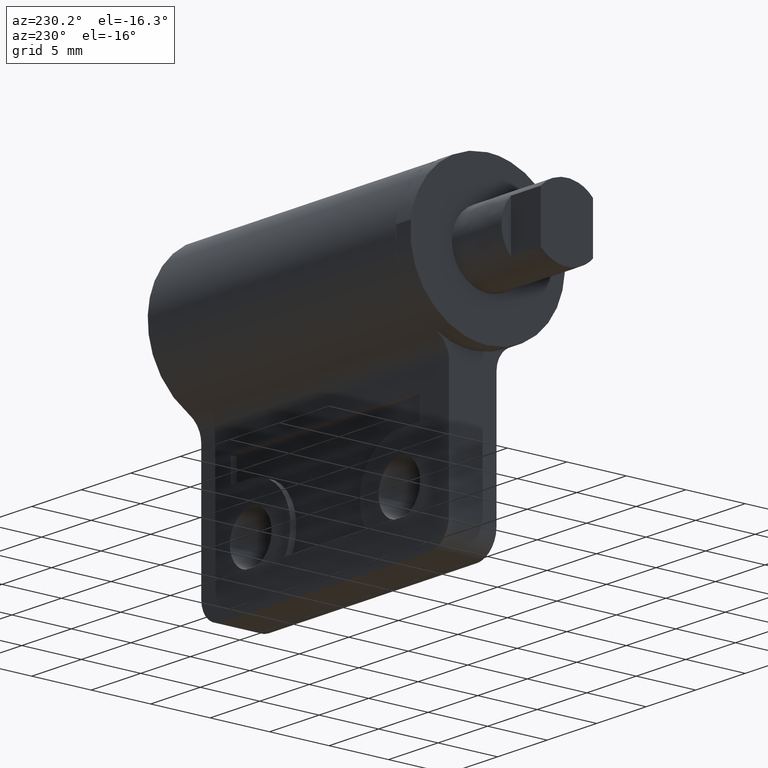
[diagram: clean part render]
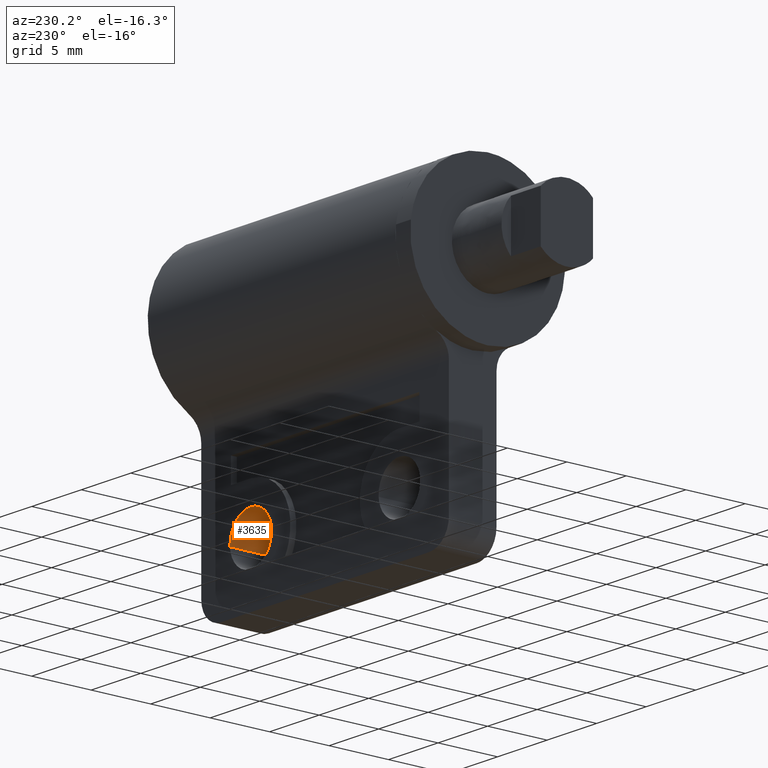
[diagram: same view with one face highlighted and labeled with its STEP entity id]
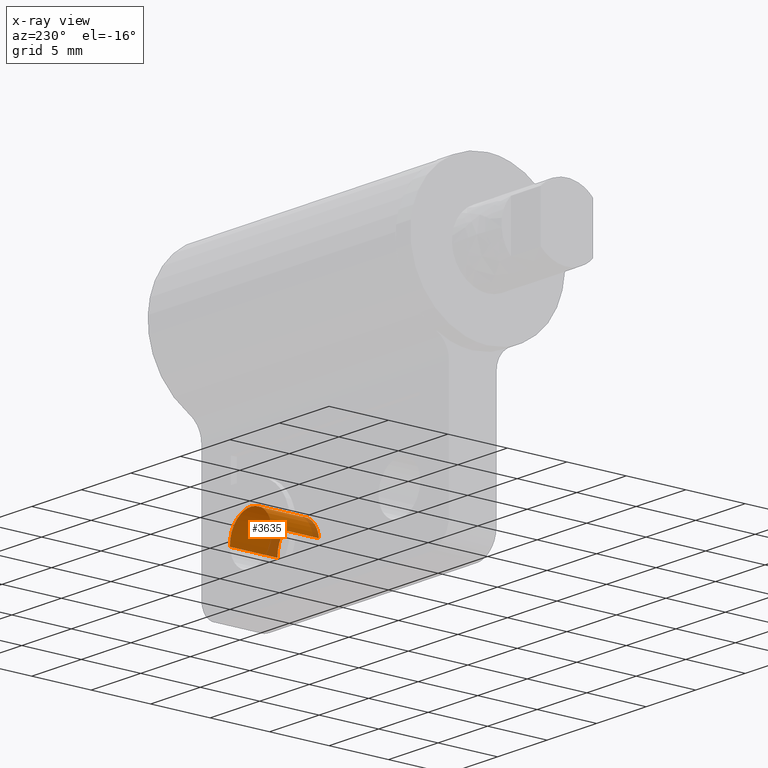
[diagram: x-ray of the same camera — body ghosted, the highlighted face saturated]
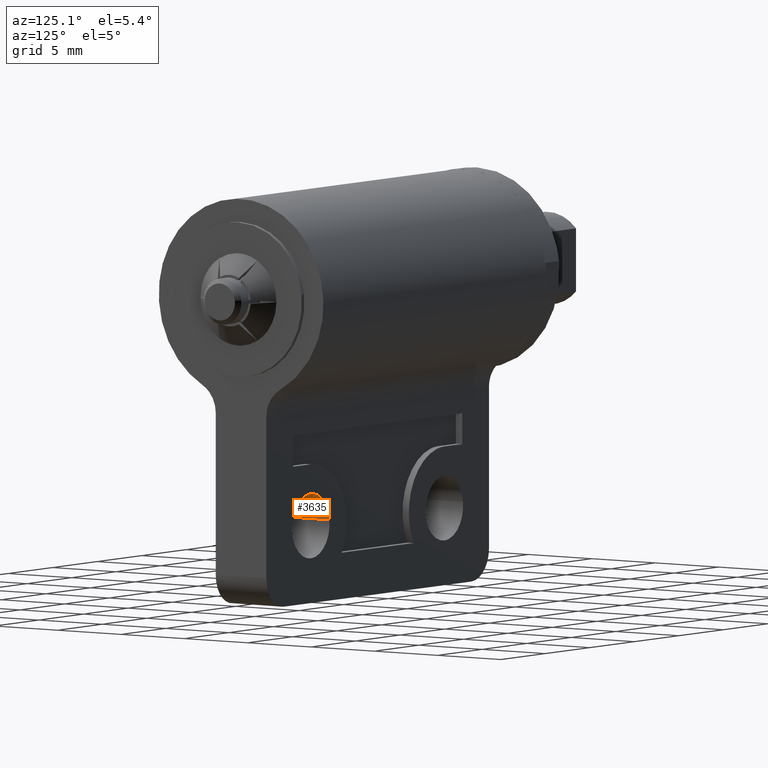
[diagram: same view with one face highlighted and labeled with its STEP entity id]
A machine part, auxiliary view. The second image highlights one B-rep face of the part: STEP entity #3635.
The next image is the same camera in x-ray: the body ghosted, the highlighted face saturated — about 15% of this face is hidden behind the body in this view.
A second angle (auxiliary view) of the same face is appended — the face is thin or edge-on in the first view.
In plain terms, the highlighted face is a freeform B-spline surface patch.
Its self-contained STEP definition (entity closure, byte-faithful):
#3472=CARTESIAN_POINT('',(24.414679769260239,-2.000000000000016,-14.752130003300460));
#3473=VERTEX_POINT('',#3472);
#3491=CARTESIAN_POINT('',(28.596083076684870,-2.0,-15.128201933040470));
#3492=VERTEX_POINT('',#3491);
#3506=CARTESIAN_POINT('',(28.596083076684859,1.999999999999780,-15.128201933040470));
#3507=VERTEX_POINT('',#3506);
#3508=CARTESIAN_POINT('',(28.596083076684859,1.999999999999780,-15.128201933040470));
#3509=CARTESIAN_POINT('',(28.596083076684870,-2.0,-15.128201933040470));
#3510=QUASI_UNIFORM_CURVE('',1,(#3508,#3509),.UNSPECIFIED.,.F.,.U.);
#3511=EDGE_CURVE('',#3507,#3492,#3510,.T.);
#3528=CARTESIAN_POINT('',(24.414679772047521,1.999999999999780,-14.752129979850981));
#3529=VERTEX_POINT('',#3528);
#3545=CARTESIAN_POINT('',(24.414679772047521,1.999999999999780,-14.752129979850981));
#3546=CARTESIAN_POINT('',(24.414679769260239,-2.000000000000016,-14.752130003300460));
#3547=QUASI_UNIFORM_CURVE('',1,(#3545,#3546),.UNSPECIFIED.,.F.,.U.);
#3548=EDGE_CURVE('',#3529,#3473,#3547,.T.);
#3553=CARTESIAN_POINT('',(28.596083076685922,2.099999999999775,-15.128201933023201));
#3554=CARTESIAN_POINT('',(28.724285009709128,2.099999999999775,-13.032118856337279));
#3555=CARTESIAN_POINT('',(26.628201933023199,2.099999999999775,-12.903916923314080));
#3556=CARTESIAN_POINT('',(24.648758669237047,2.099999999999775,-12.782848986861692));
#3557=CARTESIAN_POINT('',(24.414679994636302,2.099999999999776,-14.752128107220814));
#3558=CARTESIAN_POINT('',(28.596083076685922,-2.102499999999995,-15.128201933023201));
#3559=CARTESIAN_POINT('',(28.724285009709128,-2.102499999999995,-13.032118856337279));
#3560=CARTESIAN_POINT('',(26.628201933023199,-2.102499999999995,-12.903916923314080));
#3561=CARTESIAN_POINT('',(24.648758669237047,-2.102499999999995,-12.782848986861692));
#3562=CARTESIAN_POINT('',(24.414679994636302,-2.102499999999995,-14.752128107220814));
#3570=(BOUNDED_SURFACE()B_SPLINE_SURFACE(2,1,((#3553,#3558),(#3554,#3559),(#3555,#3560),(#3556,#3561),(#3557,#3562)),.UNSPECIFIED.,.F.,.F.,.U.)B_SPLINE_SURFACE_WITH_KNOTS((3,2,3),(2,2),(0.0,3.479393923934001,6.819612090910642),(0.0,4.202499999999771),.UNSPECIFIED.)GEOMETRIC_REPRESENTATION_ITEM()RATIONAL_B_SPLINE_SURFACE(((1.0,1.0),(0.707106781186548,0.707106781186548),(1.0,1.0),(0.718822509939086,0.718822509939086),(0.977505800795127,0.977505800795127)))REPRESENTATION_ITEM('')SURFACE());
#3571=CARTESIAN_POINT('',(26.500000000000000,-2.0,-12.900000000000000));
#3572=VERTEX_POINT('',#3571);
#3573=CARTESIAN_POINT('',(26.500000000000000,-2.0,-12.900000000000000));
#3574=CARTESIAN_POINT('',(24.634831787658161,-1.999999999999999,-12.900000000000002));
#3575=CARTESIAN_POINT('',(24.414679769260236,-2.000000000000016,-14.752130003300465));
#3583=(BOUNDED_CURVE()B_SPLINE_CURVE(2,(#3573,#3574,#3575),.UNSPECIFIED.,.F.,.U.)B_SPLINE_CURVE_WITH_KNOTS((3,3),(0.0,0.229562627182055),.UNSPECIFIED.)CURVE()GEOMETRIC_REPRESENTATION_ITEM()RATIONAL_B_SPLINE_CURVE((1.0,0.731050652821502,0.956027055380560))REPRESENTATION_ITEM(''));
#3584=EDGE_CURVE('',#3572,#3473,#3583,.T.);
#3585=ORIENTED_EDGE('',*,*,#3584,.T.);
#3586=ORIENTED_EDGE('',*,*,#3548,.F.);
#3587=CARTESIAN_POINT('',(26.500000000000000,1.999999999999780,-12.900000000000000));
#3588=VERTEX_POINT('',#3587);
#3589=CARTESIAN_POINT('',(26.500000000000000,1.999999999999780,-12.900000000000000));
#3590=CARTESIAN_POINT('',(24.634831808779666,1.999999999999780,-12.900000000000000));
#3591=CARTESIAN_POINT('',(24.414679772047517,1.999999999999780,-14.752129979850983));
#3599=(BOUNDED_CURVE()B_SPLINE_CURVE(2,(#3589,#3590,#3591),.UNSPECIFIED.,.F.,.U.)B_SPLINE_CURVE_WITH_KNOTS((3,3),(0.0,0.229562625281608),.UNSPECIFIED.)CURVE()GEOMETRIC_REPRESENTATION_ITEM()RATIONAL_B_SPLINE_CURVE((1.0,0.731050655048013,0.956027051655602))REPRESENTATION_ITEM(''));
#3600=EDGE_CURVE('',#3588,#3529,#3599,.T.);
#3601=ORIENTED_EDGE('',*,*,#3600,.F.);
#3602=CARTESIAN_POINT('',(28.596083076684859,1.999999999999780,-15.128201933040460));
#3603=CARTESIAN_POINT('',(28.600000000000001,1.999999999999780,-15.064160802944349));
#3604=CARTESIAN_POINT('',(28.600000000000001,1.999999999999780,-15.0));
#3605=CARTESIAN_POINT('',(28.600000000000012,1.999999999999780,-12.900000000000002));
#3606=CARTESIAN_POINT('',(26.500000000000000,1.999999999999780,-12.900000000000000));
#3614=(BOUNDED_CURVE()B_SPLINE_CURVE(2,(#3602,#3603,#3604,#3605,#3606),.UNSPECIFIED.,.F.,.U.)B_SPLINE_CURVE_WITH_KNOTS((3,2,3),(0.739332962239125,0.750000000000000,1.0),.UNSPECIFIED.)CURVE()GEOMETRIC_REPRESENTATION_ITEM()RATIONAL_B_SPLINE_CURVE((0.976072041667109,0.987502787900051,1.0,0.707106781186548,1.0))REPRESENTATION_ITEM(''));
#3615=EDGE_CURVE('',#3507,#3588,#3614,.T.);
#3616=ORIENTED_EDGE('',*,*,#3615,.F.);
#3617=ORIENTED_EDGE('',*,*,#3511,.T.);
#3618=CARTESIAN_POINT('',(28.596083076684867,-2.000000000000000,-15.128201933040465));
#3619=CARTESIAN_POINT('',(28.600000000000005,-2.0,-15.064160802944356));
#3620=CARTESIAN_POINT('',(28.600000000000001,-2.0,-15.0));
#3621=CARTESIAN_POINT('',(28.600000000000012,-2.000000000000000,-12.900000000000002));
#3622=CARTESIAN_POINT('',(26.500000000000000,-2.0,-12.900000000000000));
#3630=(BOUNDED_CURVE()B_SPLINE_CURVE(2,(#3618,#3619,#3620,#3621,#3622),.UNSPECIFIED.,.F.,.U.)B_SPLINE_CURVE_WITH_KNOTS((3,2,3),(0.739332962239126,0.750000000000000,1.0),.UNSPECIFIED.)CURVE()GEOMETRIC_REPRESENTATION_ITEM()RATIONAL_B_SPLINE_CURVE((0.976072041667110,0.987502787900052,1.0,0.707106781186548,1.0))REPRESENTATION_ITEM(''));
#3631=EDGE_CURVE('',#3492,#3572,#3630,.T.);
#3632=ORIENTED_EDGE('',*,*,#3631,.T.);
#3633=EDGE_LOOP('',(#3585,#3586,#3601,#3616,#3617,#3632));
#3634=FACE_OUTER_BOUND('',#3633,.T.);
#3635=ADVANCED_FACE('',(#3634),#3570,.F.);